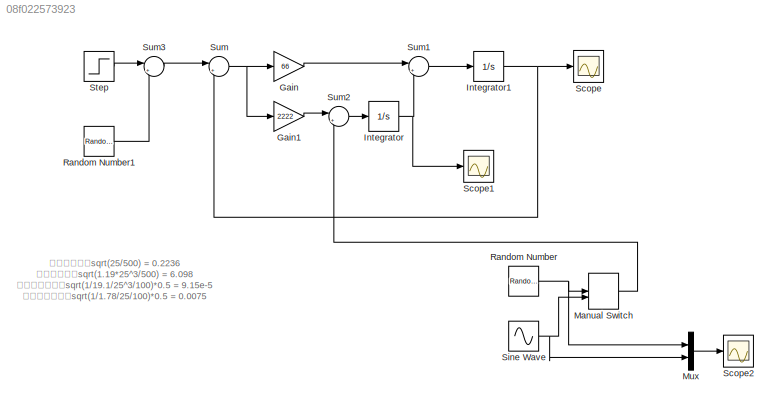
MODEL slx_08f022573923
KIND model
CONFIG AbsTol = auto
CONFIG EnableMultiTasking = off
CONFIG FixedStep = 0.001
CONFIG MaxStep = auto
CONFIG MinStep = auto
CONFIG RelTol = 1e-3
CONFIG SampleTimeConstraint = Unconstrained
CONFIG SolverName = ode4
CONFIG StartTime = 0.0
CONFIG StopTime = 50.0
BLOCK [Gain] Gain
  Gain = 66
BLOCK [Gain] Gain1
  Gain = 2222
BLOCK [Integrator] Integrator
  Ports = [1, 1]
BLOCK [Integrator] Integrator1
  Ports = [1, 1]
BLOCK [ManualSwitch] Manual Switch
BLOCK [Mux] Mux
  DisplayOption = bar
  Inputs = 2
  Ports = [2, 1]
BLOCK [RandomNumber] Random Number
  SampleTime = 0.01
  Variance = (0.1*5)^2*1
BLOCK [RandomNumber] Random Number1
  SampleTime = 0.001
  Variance = 1^2*0
BLOCK [Scope] Scope
  Floating = off
  NumInputPorts = 1
  Ports = [1]
  ScopeSpecificationString = Simulink.scopes.TimeScopeBlockCfg('CurrentConfiguration', extmgr.ConfigurationSet(extmgr.Configuration('Core','General UI',true),extmgr.Configuration('Core','Source UI',true),extmgr.Configuration('Sources','WiredSimulink',true),extmgr.Configuration('Visuals','Time Domain',true,'SerializedDisplays',{struct('MinYLimReal','-0.00043','MaxYLimReal','0.00074','YLabelReal','','MinYLimMag','0.00000','MaxY...<+1420ch>
BLOCK [Scope] Scope1
  Floating = off
  NumInputPorts = 1
  Ports = [1]
  ScopeSpecificationString = Simulink.scopes.TimeScopeBlockCfg('CurrentConfiguration', extmgr.ConfigurationSet(extmgr.Configuration('Core','General UI',true),extmgr.Configuration('Core','Source UI',true),extmgr.Configuration('Sources','WiredSimulink',true,'DataLoggingVariableName','ScopeData1'),extmgr.Configuration('Visuals','Time Domain',true,'SerializedDisplays',{struct('MinYLimReal','-26.75895','MaxYLimReal','28.4364','YLa...<+1465ch>
BLOCK [Scope] Scope2
  Floating = off
  NumInputPorts = 1
  Ports = [1]
  ScopeSpecificationString = Simulink.scopes.TimeScopeBlockCfg('CurrentConfiguration', extmgr.ConfigurationSet(extmgr.Configuration('Core','General UI',true),extmgr.Configuration('Core','Source UI',true),extmgr.Configuration('Sources','WiredSimulink',true,'DataLoggingVariableName','ScopeData1'),extmgr.Configuration('Visuals','Time Domain',true,'SerializedDisplays',{struct('MinYLimReal','-2.42372','MaxYLimReal','2.39194','YLab...<+1506ch>
BLOCK [Sin] Sine Wave
  Amplitude = 0.5
  Frequency = 20*2*pi
  Ports = [0, 1]
  SampleTime = 0.01
BLOCK [Step] Step
  SampleTime = 0
  Time = 100
BLOCK [Sum] Sum
  Inputs = |+-
  Ports = [2, 1]
BLOCK [Sum] Sum1
  Inputs = |++
  Ports = [2, 1]
BLOCK [Sum] Sum2
  Inputs = |++
  Ports = [2, 1]
BLOCK [Sum] Sum3
  Inputs = |++
  Ports = [2, 1]
ANNOTATION (root): 相位到相位：sqrt(25/500) = 0.2236 相位到频率：sqrt(1.19*25^3/500) = 6.098 加速度到相位：sqrt(1/19.1/25^3/100)*0.5 = 9.15e-5 加速度到频率：sqrt(1/1.78/25/100)*0.5 = 0.0075
LINE Gain1:1 -> Sum2:1
LINE Gain:1 -> Sum1:1
NET Integrator1:1 -> Scope:1, Sum:2
NET Integrator:1 -> Scope1:1, Sum1:2
LINE Manual Switch:1 -> Sum2:2
LINE Mux:1 -> Scope2:1
LINE Random Number1:1 -> Sum3:2
NET Random Number:1 -> Manual Switch:1, Mux:1
NET Sine Wave:1 -> Manual Switch:2, Mux:2
LINE Step:1 -> Sum3:1
LINE Sum1:1 -> Integrator1:1
LINE Sum2:1 -> Integrator:1
LINE Sum3:1 -> Sum:1
NET Sum:1 -> Gain1:1, Gain:1
note: NET lines group one-source signal fan-out (src -> all destinations, sorted); 1:1 wires keep LINE
